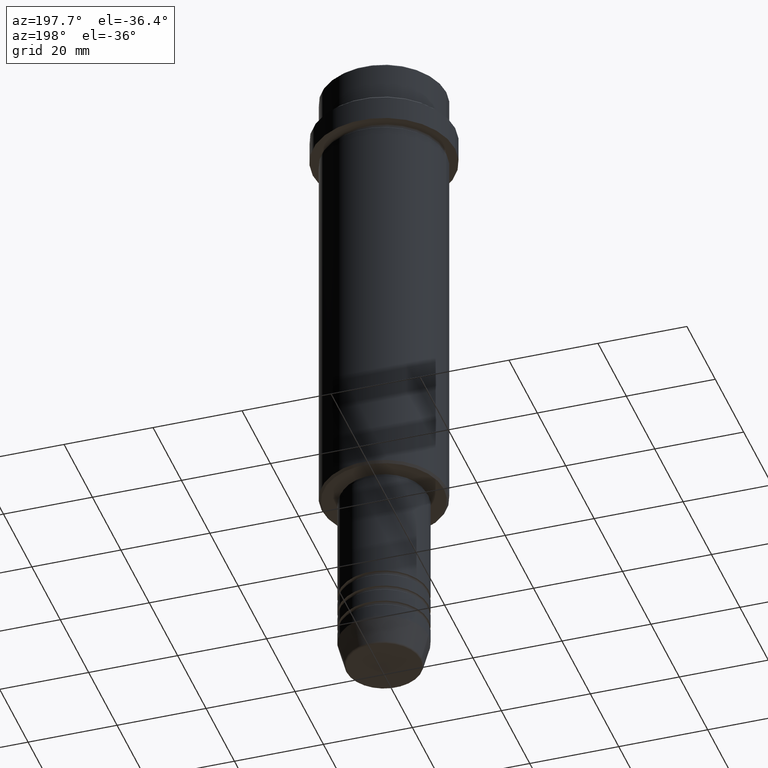
[diagram: clean part render]
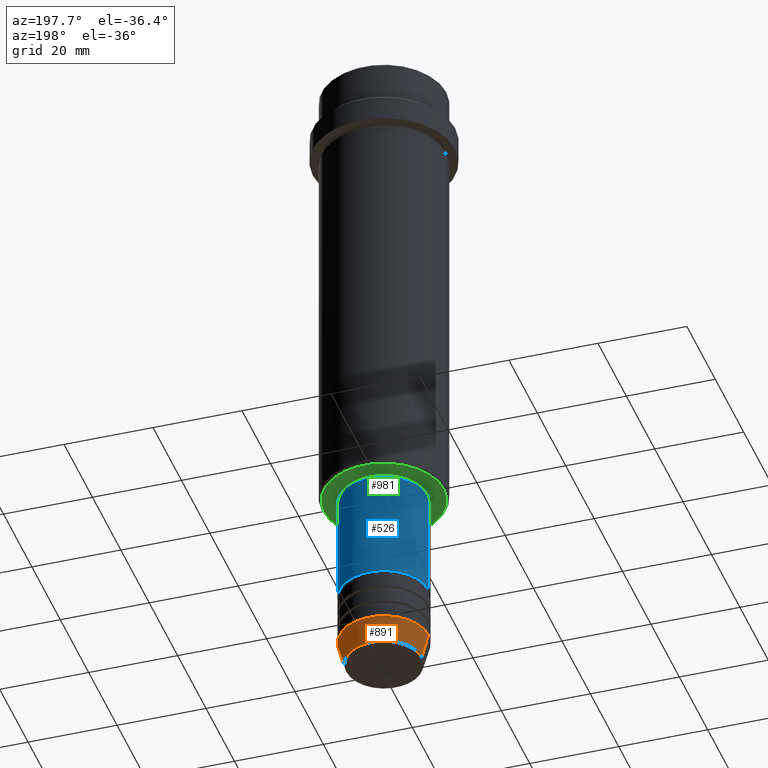
[diagram: same view with three faces highlighted in distinct colors, each labeled with its STEP entity id]
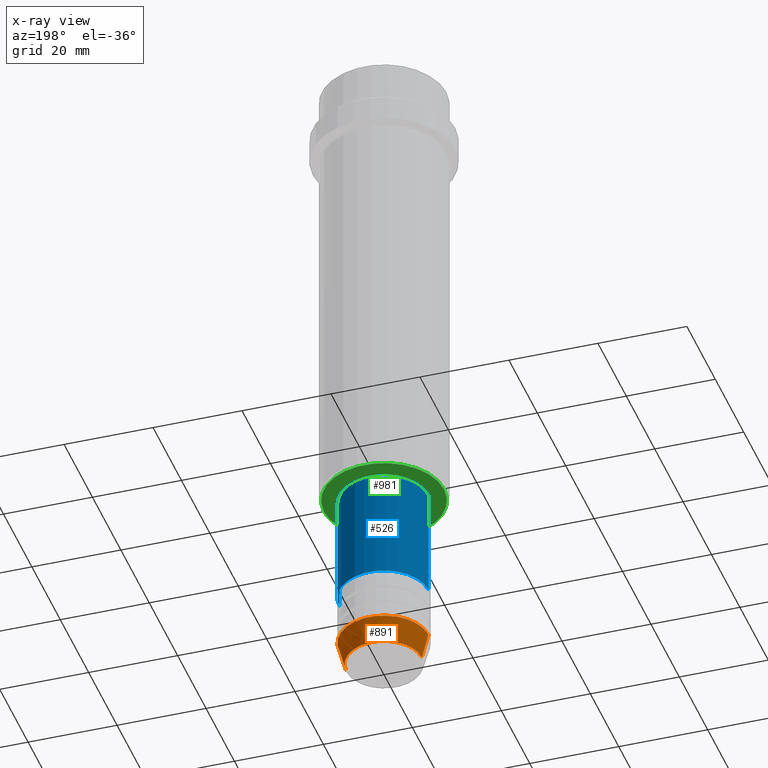
[diagram: x-ray of the same camera — body ghosted, the three highlighted faces saturated]
A machine part, auxiliary view with three faces highlighted in distinct colors.
The next image is the same camera in x-ray (body ghosted, the three faces saturated) — at least one of them is partly hidden behind the body in this view.
Their STEP definitions:

[orange] entity #891 — the highlighted conical surface has half-angle 15 deg.
#36 = CARTESIAN_POINT ( 'NONE',  ( 8.491604264568309191, 0.000000000000000000, -149.6294095225512990 ) ) ;
#40 = DIRECTION ( 'NONE',  ( 1.000000000000000000, 0.000000000000000000, 0.000000000000000000 ) ) ;
#118 = CARTESIAN_POINT ( 'NONE',  ( 10.00000000000000000, 0.000000000000000000, -144.0000000000000284 ) ) ;
#132 = CARTESIAN_POINT ( 'NONE',  ( 10.00000000000000000, 0.000000000000000000, -144.0000000000000284 ) ) ;
#145 = ORIENTED_EDGE ( 'NONE', *, *, #935, .T. ) ;
#163 = CONICAL_SURFACE ( 'NONE', #1076, 10.00000000000000000, 0.2617993877991498519 ) ;
#182 = DIRECTION ( 'NONE',  ( -0.000000000000000000, -0.000000000000000000, 1.000000000000000000 ) ) ;
#232 = DIRECTION ( 'NONE',  ( -0.2588190451025211281, 3.169619151431769872E-17, 0.9659258262890680902 ) ) ;
#280 = CARTESIAN_POINT ( 'NONE',  ( -10.00000000000000000, 1.224646799147353256E-15, -144.0000000000000284 ) ) ;
#281 = EDGE_CURVE ( 'NONE', #823, #539, #774, .T. ) ;
#286 = FACE_OUTER_BOUND ( 'NONE', #1083, .T. ) ;
#298 = AXIS2_PLACEMENT_3D ( 'NONE', #507, #814, #1374 ) ;
#320 = VERTEX_POINT ( 'NONE', #36 ) ;
#339 = DIRECTION ( 'NONE',  ( 1.000000000000000000, 0.000000000000000000, 0.000000000000000000 ) ) ;
#344 = ORIENTED_EDGE ( 'NONE', *, *, #1210, .F. ) ;
#420 = CARTESIAN_POINT ( 'NONE',  ( 0.000000000000000000, 0.000000000000000000, -144.0000000000000284 ) ) ;
#464 = VERTEX_POINT ( 'NONE', #118 ) ;
#507 = CARTESIAN_POINT ( 'NONE',  ( 0.000000000000000000, 0.000000000000000000, -149.6294095225512990 ) ) ;
#539 = VERTEX_POINT ( 'NONE', #280 ) ;
#547 = DIRECTION ( 'NONE',  ( 0.2588190451025211281, 0.000000000000000000, 0.9659258262890680902 ) ) ;
#574 = AXIS2_PLACEMENT_3D ( 'NONE', #420, #1073, #339 ) ;
#590 = CIRCLE ( 'NONE', #574, 10.00000000000000000 ) ;
#650 = LINE ( 'NONE', #132, #1128 ) ;
#722 = CARTESIAN_POINT ( 'NONE',  ( 0.000000000000000000, 0.000000000000000000, -144.0000000000000284 ) ) ;
#741 = ORIENTED_EDGE ( 'NONE', *, *, #281, .T. ) ;
#774 = LINE ( 'NONE', #1195, #1289 ) ;
#814 = DIRECTION ( 'NONE',  ( -0.000000000000000000, -0.000000000000000000, 1.000000000000000000 ) ) ;
#823 = VERTEX_POINT ( 'NONE', #826 ) ;
#826 = CARTESIAN_POINT ( 'NONE',  ( -8.491604264568309191, 1.132284198685156387E-15, -149.6294095225512990 ) ) ;
#891 = ADVANCED_FACE ( 'NONE', ( #286 ), #163, .T. ) ;
#935 = EDGE_CURVE ( 'NONE', #320, #823, #1116, .T. ) ;
#955 = ORIENTED_EDGE ( 'NONE', *, *, #1277, .F. ) ;
#1073 = DIRECTION ( 'NONE',  ( -0.000000000000000000, -0.000000000000000000, 1.000000000000000000 ) ) ;
#1076 = AXIS2_PLACEMENT_3D ( 'NONE', #722, #182, #40 ) ;
#1083 = EDGE_LOOP ( 'NONE', ( #145, #741, #344, #955 ) ) ;
#1116 = CIRCLE ( 'NONE', #298, 8.491604264568309191 ) ;
#1128 = VECTOR ( 'NONE', #547, 1000.000000000000114 ) ;
#1195 = CARTESIAN_POINT ( 'NONE',  ( -10.00000000000000000, 1.224646799147353256E-15, -144.0000000000000284 ) ) ;
#1210 = EDGE_CURVE ( 'NONE', #464, #539, #590, .T. ) ;
#1277 = EDGE_CURVE ( 'NONE', #320, #464, #650, .T. ) ;
#1289 = VECTOR ( 'NONE', #232, 1000.000000000000114 ) ;
#1374 = DIRECTION ( 'NONE',  ( 1.000000000000000000, 0.000000000000000000, 0.000000000000000000 ) ) ;

[blue] entity #526 — the highlighted cylindrical surface (partial cylindrical patch) has radius 10 mm, axis along (-0, -0, 1).
#57 = CIRCLE ( 'NONE', #448, 10.00000000000000178 ) ;
#114 = ORIENTED_EDGE ( 'NONE', *, *, #680, .T. ) ;
#175 = FACE_OUTER_BOUND ( 'NONE', #1351, .T. ) ;
#185 = CARTESIAN_POINT ( 'NONE',  ( 0.000000000000000000, 0.000000000000000000, 0.000000000000000000 ) ) ;
#206 = VERTEX_POINT ( 'NONE', #992 ) ;
#258 = DIRECTION ( 'NONE',  ( -0.000000000000000000, -0.000000000000000000, 1.000000000000000000 ) ) ;
#283 = AXIS2_PLACEMENT_3D ( 'NONE', #185, #1122, #1350 ) ;
#287 = EDGE_CURVE ( 'NONE', #340, #672, #725, .T. ) ;
#321 = DIRECTION ( 'NONE',  ( 1.000000000000000000, 0.000000000000000000, 0.000000000000000000 ) ) ;
#328 = DIRECTION ( 'NONE',  ( -0.000000000000000000, -0.000000000000000000, 1.000000000000000000 ) ) ;
#334 = EDGE_CURVE ( 'NONE', #340, #846, #466, .T. ) ;
#340 = VERTEX_POINT ( 'NONE', #696 ) ;
#347 = DIRECTION ( 'NONE',  ( 1.000000000000000000, 0.000000000000000000, 0.000000000000000000 ) ) ;
#408 = VECTOR ( 'NONE', #258, 1000.000000000000000 ) ;
#445 = ORIENTED_EDGE ( 'NONE', *, *, #334, .F. ) ;
#448 = AXIS2_PLACEMENT_3D ( 'NONE', #1283, #328, #321 ) ;
#466 = LINE ( 'NONE', #471, #408 ) ;
#467 = ORIENTED_EDGE ( 'NONE', *, *, #287, .T. ) ;
#471 = CARTESIAN_POINT ( 'NONE',  ( 10.00000000000000178, 0.000000000000000000, 0.000000000000000000 ) ) ;
#502 = CARTESIAN_POINT ( 'NONE',  ( 10.00000000000000178, 0.000000000000000000, -107.0000000000000000 ) ) ;
#526 = ADVANCED_FACE ( 'NONE', ( #175 ), #609, .T. ) ;
#601 = VECTOR ( 'NONE', #1169, 1000.000000000000000 ) ;
#609 = CYLINDRICAL_SURFACE ( 'NONE', #283, 10.00000000000000178 ) ;
#651 = ORIENTED_EDGE ( 'NONE', *, *, #659, .F. ) ;
#654 = LINE ( 'NONE', #1081, #601 ) ;
#659 = EDGE_CURVE ( 'NONE', #846, #206, #57, .T. ) ;
#672 = VERTEX_POINT ( 'NONE', #966 ) ;
#680 = EDGE_CURVE ( 'NONE', #672, #206, #654, .T. ) ;
#687 = AXIS2_PLACEMENT_3D ( 'NONE', #859, #1297, #347 ) ;
#696 = CARTESIAN_POINT ( 'NONE',  ( 10.00000000000000000, 0.000000000000000000, -131.9999999999998863 ) ) ;
#725 = CIRCLE ( 'NONE', #687, 10.00000000000000000 ) ;
#846 = VERTEX_POINT ( 'NONE', #502 ) ;
#859 = CARTESIAN_POINT ( 'NONE',  ( 0.000000000000000000, 0.000000000000000000, -131.9999999999998863 ) ) ;
#966 = CARTESIAN_POINT ( 'NONE',  ( -10.00000000000000000, 1.224646799147353256E-15, -131.9999999999998863 ) ) ;
#992 = CARTESIAN_POINT ( 'NONE',  ( -10.00000000000000178, 1.224646799147353454E-15, -107.0000000000000000 ) ) ;
#1081 = CARTESIAN_POINT ( 'NONE',  ( -10.00000000000000178, 1.224646799147353454E-15, 0.000000000000000000 ) ) ;
#1122 = DIRECTION ( 'NONE',  ( -0.000000000000000000, -0.000000000000000000, 1.000000000000000000 ) ) ;
#1169 = DIRECTION ( 'NONE',  ( -0.000000000000000000, -0.000000000000000000, 1.000000000000000000 ) ) ;
#1283 = CARTESIAN_POINT ( 'NONE',  ( 0.000000000000000000, 0.000000000000000000, -107.0000000000000000 ) ) ;
#1297 = DIRECTION ( 'NONE',  ( -0.000000000000000000, -0.000000000000000000, 1.000000000000000000 ) ) ;
#1350 = DIRECTION ( 'NONE',  ( 1.000000000000000000, 0.000000000000000000, 0.000000000000000000 ) ) ;
#1351 = EDGE_LOOP ( 'NONE', ( #467, #114, #651, #445 ) ) ;

[green] entity #981 — the highlighted planar face has unit normal (0, 0, -1).
#38 = CARTESIAN_POINT ( 'NONE',  ( 13.50000000000001243, 0.000000000000000000, -106.0000000000000000 ) ) ;
#76 = AXIS2_PLACEMENT_3D ( 'NONE', #883, #1191, #117 ) ;
#117 = DIRECTION ( 'NONE',  ( -1.000000000000000000, 0.000000000000000000, 0.000000000000000000 ) ) ;
#167 = CIRCLE ( 'NONE', #76, 13.50000000000001243 ) ;
#196 = ORIENTED_EDGE ( 'NONE', *, *, #1047, .T. ) ;
#245 = AXIS2_PLACEMENT_3D ( 'NONE', #614, #460, #1151 ) ;
#248 = CARTESIAN_POINT ( 'NONE',  ( 0.000000000000000000, 0.000000000000000000, -106.0000000000000000 ) ) ;
#260 = CARTESIAN_POINT ( 'NONE',  ( -9.499999999999996447, 1.163414459189985091E-15, -106.0000000000000000 ) ) ;
#333 = EDGE_LOOP ( 'NONE', ( #196, #853 ) ) ;
#336 = EDGE_LOOP ( 'NONE', ( #851, #924 ) ) ;
#403 = DIRECTION ( 'NONE',  ( 0.000000000000000000, 0.000000000000000000, -1.000000000000000000 ) ) ;
#405 = VERTEX_POINT ( 'NONE', #719 ) ;
#412 = DIRECTION ( 'NONE',  ( 1.000000000000000000, 0.000000000000000000, 0.000000000000000000 ) ) ;
#438 = VERTEX_POINT ( 'NONE', #855 ) ;
#460 = DIRECTION ( 'NONE',  ( -0.000000000000000000, -0.000000000000000000, 1.000000000000000000 ) ) ;
#481 = AXIS2_PLACEMENT_3D ( 'NONE', #500, #403, #1016 ) ;
#484 = CARTESIAN_POINT ( 'NONE',  ( 0.000000000000000000, 0.000000000000000000, -106.0000000000000000 ) ) ;
#500 = CARTESIAN_POINT ( 'NONE',  ( 0.000000000000000000, 14.00000000000000000, -106.0000000000000000 ) ) ;
#585 = FACE_BOUND ( 'NONE', #333, .T. ) ;
#597 = FACE_OUTER_BOUND ( 'NONE', #336, .T. ) ;
#614 = CARTESIAN_POINT ( 'NONE',  ( 0.000000000000000000, 0.000000000000000000, -106.0000000000000000 ) ) ;
#656 = AXIS2_PLACEMENT_3D ( 'NONE', #484, #1033, #1240 ) ;
#668 = CIRCLE ( 'NONE', #843, 9.499999999999996447 ) ;
#719 = CARTESIAN_POINT ( 'NONE',  ( 9.499999999999996447, 0.000000000000000000, -106.0000000000000000 ) ) ;
#843 = AXIS2_PLACEMENT_3D ( 'NONE', #248, #1015, #412 ) ;
#851 = ORIENTED_EDGE ( 'NONE', *, *, #1091, .T. ) ;
#853 = ORIENTED_EDGE ( 'NONE', *, *, #1131, .T. ) ;
#855 = CARTESIAN_POINT ( 'NONE',  ( -13.50000000000001243, 1.683889348827610851E-15, -106.0000000000000000 ) ) ;
#856 = VERTEX_POINT ( 'NONE', #260 ) ;
#860 = EDGE_CURVE ( 'NONE', #438, #1312, #1250, .T. ) ;
#883 = CARTESIAN_POINT ( 'NONE',  ( 0.000000000000000000, 0.000000000000000000, -106.0000000000000000 ) ) ;
#924 = ORIENTED_EDGE ( 'NONE', *, *, #860, .T. ) ;
#981 = ADVANCED_FACE ( 'NONE', ( #597, #585 ), #1041, .T. ) ;
#1015 = DIRECTION ( 'NONE',  ( -0.000000000000000000, -0.000000000000000000, 1.000000000000000000 ) ) ;
#1016 = DIRECTION ( 'NONE',  ( -1.000000000000000000, 0.000000000000000000, -0.000000000000000000 ) ) ;
#1033 = DIRECTION ( 'NONE',  ( 0.000000000000000000, 0.000000000000000000, -1.000000000000000000 ) ) ;
#1041 = PLANE ( 'NONE',  #481 ) ;
#1047 = EDGE_CURVE ( 'NONE', #405, #856, #1368, .T. ) ;
#1091 = EDGE_CURVE ( 'NONE', #1312, #438, #167, .T. ) ;
#1131 = EDGE_CURVE ( 'NONE', #856, #405, #668, .T. ) ;
#1151 = DIRECTION ( 'NONE',  ( 1.000000000000000000, 0.000000000000000000, 0.000000000000000000 ) ) ;
#1191 = DIRECTION ( 'NONE',  ( 0.000000000000000000, 0.000000000000000000, -1.000000000000000000 ) ) ;
#1240 = DIRECTION ( 'NONE',  ( -1.000000000000000000, 0.000000000000000000, 0.000000000000000000 ) ) ;
#1250 = CIRCLE ( 'NONE', #656, 13.50000000000001243 ) ;
#1312 = VERTEX_POINT ( 'NONE', #38 ) ;
#1368 = CIRCLE ( 'NONE', #245, 9.499999999999996447 ) ;